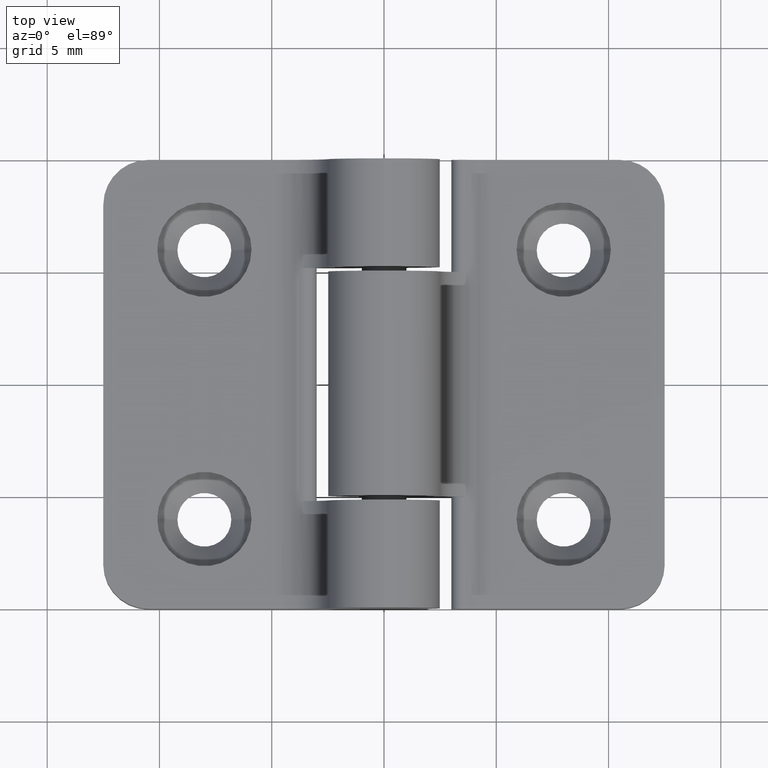
[diagram: clean part render]
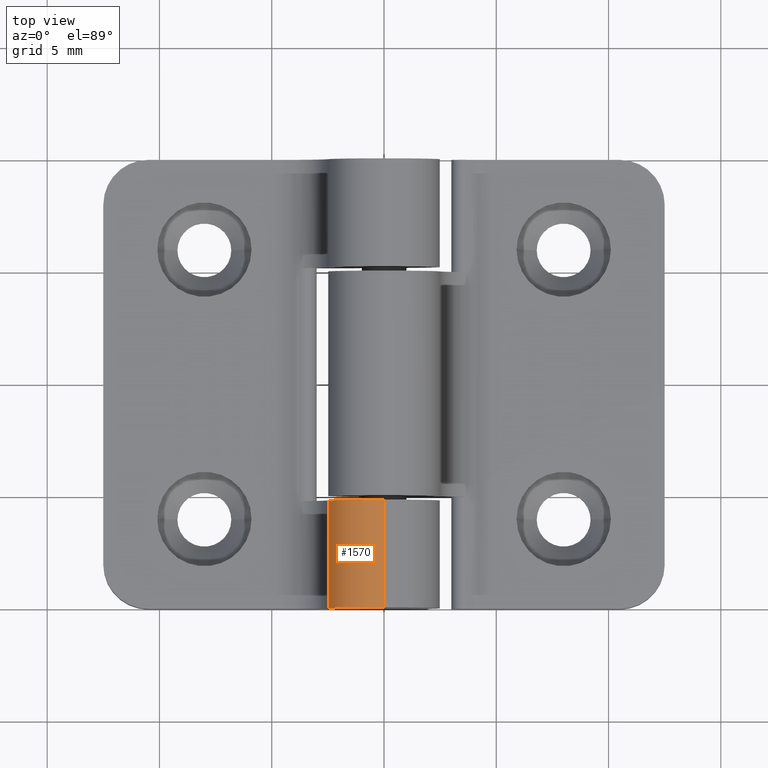
[diagram: same view with one face highlighted and labeled with its STEP entity id]
A machine part, top view. The second image highlights one B-rep face of the part: STEP entity #1570.
In plain terms, the highlighted cylindrical surface (partial cylindrical patch) has radius 2.5 mm, axis along (-0, -1, -0).
Its self-contained STEP definition (entity closure, byte-faithful):
#19 = VERTEX_POINT ( 'NONE', #1369 ) ;
#27 = DIRECTION ( 'NONE',  ( 0.0000000000000000000, 1.000000000000000000, 0.0000000000000000000 ) ) ;
#214 = CIRCLE ( 'NONE', #2185, 2.500000000000000400 ) ;
#232 = CIRCLE ( 'NONE', #398, 2.500000000000000400 ) ;
#235 = VERTEX_POINT ( 'NONE', #1843 ) ;
#398 = AXIS2_PLACEMENT_3D ( 'NONE', #1198, #27, #1394 ) ;
#446 = LINE ( 'NONE', #1384, #2418 ) ;
#568 = EDGE_CURVE ( 'NONE', #19, #581, #232, .T. ) ;
#569 = ORIENTED_EDGE ( 'NONE', *, *, #568, .T. ) ;
#581 = VERTEX_POINT ( 'NONE', #2165 ) ;
#735 = EDGE_LOOP ( 'NONE', ( #1111, #1116, #2101, #569 ) ) ;
#924 = EDGE_CURVE ( 'NONE', #235, #19, #446, .T. ) ;
#981 = DIRECTION ( 'NONE',  ( -0.0000000000000000000, -1.000000000000000000, -0.0000000000000000000 ) ) ;
#1111 = ORIENTED_EDGE ( 'NONE', *, *, #2205, .F. ) ;
#1116 = ORIENTED_EDGE ( 'NONE', *, *, #1766, .T. ) ;
#1118 = CARTESIAN_POINT ( 'NONE',  ( 0.0000000000000000000, 4.799999999999998900, 0.0000000000000000000 ) ) ;
#1144 = CARTESIAN_POINT ( 'NONE',  ( 3.061616997868383600E-016, 4.799999999999998900, 2.500000000000000400 ) ) ;
#1198 = CARTESIAN_POINT ( 'NONE',  ( 0.0000000000000000000, 0.0000000000000000000, 0.0000000000000000000 ) ) ;
#1267 = CARTESIAN_POINT ( 'NONE',  ( 0.0000000000000000000, 20.00000000000000000, 0.0000000000000000000 ) ) ;
#1313 = DIRECTION ( 'NONE',  ( 0.0000000000000000000, 0.0000000000000000000, -1.000000000000000000 ) ) ;
#1369 = CARTESIAN_POINT ( 'NONE',  ( -2.484519974999766800, 0.0000000000000000000, 0.2777777777777780700 ) ) ;
#1384 = CARTESIAN_POINT ( 'NONE',  ( -2.484519974999766800, 20.00000000000000000, 0.2777777777777780700 ) ) ;
#1394 = DIRECTION ( 'NONE',  ( 0.0000000000000000000, 0.0000000000000000000, 1.000000000000000000 ) ) ;
#1453 = DIRECTION ( 'NONE',  ( 0.0000000000000000000, 0.0000000000000000000, -1.000000000000000000 ) ) ;
#1570 = ADVANCED_FACE ( 'NONE', ( #2181 ), #1604, .T. ) ;
#1604 = CYLINDRICAL_SURFACE ( 'NONE', #2230, 2.500000000000000400 ) ;
#1681 = CARTESIAN_POINT ( 'NONE',  ( 3.061616997868383600E-016, 20.00000000000000000, 2.500000000000000400 ) ) ;
#1759 = VECTOR ( 'NONE', #2084, 1000.000000000000000 ) ;
#1766 = EDGE_CURVE ( 'NONE', #2311, #235, #214, .T. ) ;
#1803 = LINE ( 'NONE', #1681, #1759 ) ;
#1843 = CARTESIAN_POINT ( 'NONE',  ( -2.484519974999766800, 4.799999999999998900, 0.2777777777777780700 ) ) ;
#2084 = DIRECTION ( 'NONE',  ( -0.0000000000000000000, -1.000000000000000000, -0.0000000000000000000 ) ) ;
#2101 = ORIENTED_EDGE ( 'NONE', *, *, #924, .T. ) ;
#2165 = CARTESIAN_POINT ( 'NONE',  ( 3.061616997868383600E-016, 0.0000000000000000000, 2.500000000000000400 ) ) ;
#2181 = FACE_OUTER_BOUND ( 'NONE', #735, .T. ) ;
#2185 = AXIS2_PLACEMENT_3D ( 'NONE', #1118, #2457, #1313 ) ;
#2205 = EDGE_CURVE ( 'NONE', #2311, #581, #1803, .T. ) ;
#2230 = AXIS2_PLACEMENT_3D ( 'NONE', #1267, #2405, #1453 ) ;
#2311 = VERTEX_POINT ( 'NONE', #1144 ) ;
#2405 = DIRECTION ( 'NONE',  ( -0.0000000000000000000, -1.000000000000000000, -0.0000000000000000000 ) ) ;
#2418 = VECTOR ( 'NONE', #981, 1000.000000000000000 ) ;
#2457 = DIRECTION ( 'NONE',  ( 0.0000000000000000000, -1.000000000000000000, 0.0000000000000000000 ) ) ;